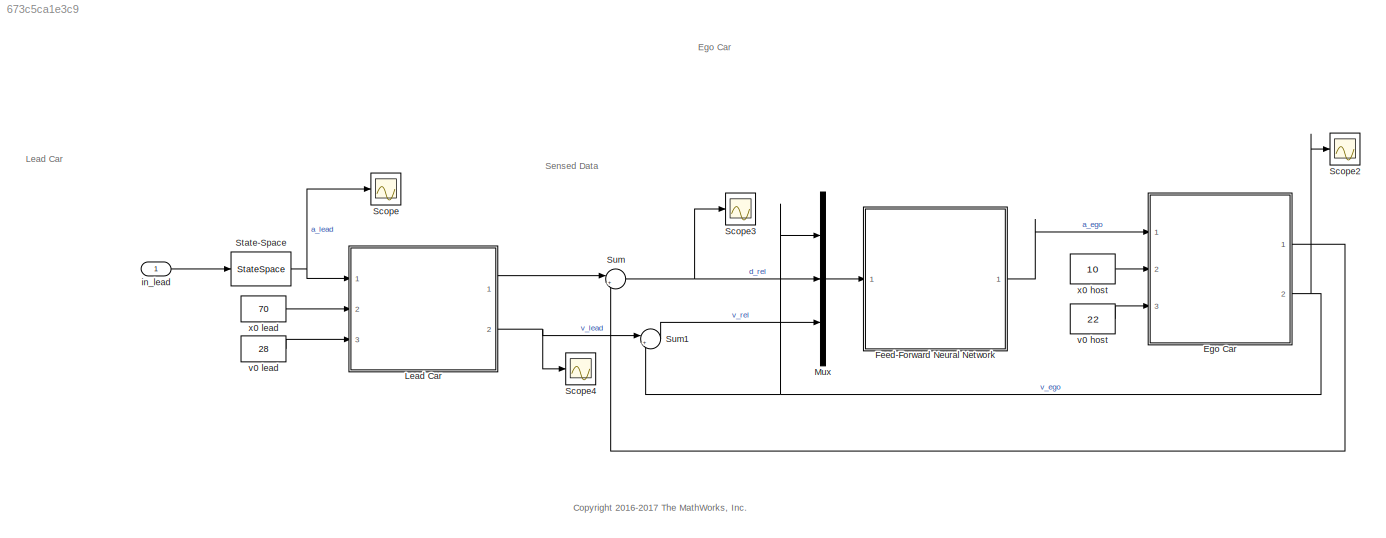
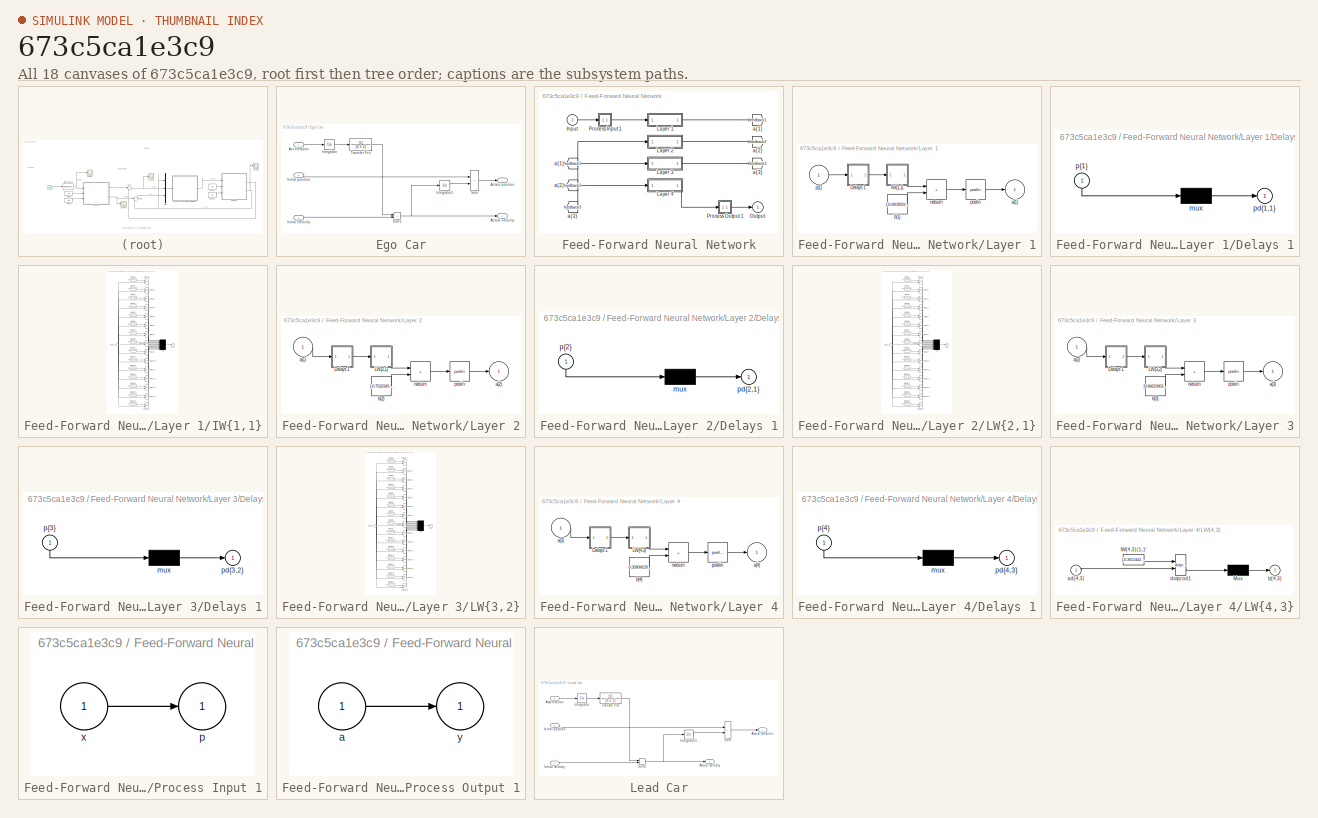
[diagram: thumbnail index - all 18 canvases of the model, root first then tree order]
MODEL slx_673c5ca1e3c9
KIND model
CONFIG AbsTol = auto
CONFIG EnableMultiTasking = off
CONFIG FixedStep = 0.1
CONFIG MaxStep = auto
CONFIG MinStep = auto
CONFIG RelTol = 1e-3
CONFIG SampleTimeConstraint = Unconstrained
CONFIG SolverName = FixedStepAuto
CONFIG StartTime = 0.0
CONFIG StopTime = 50
BLOCK [SubSystem] Ego Car
  Ports = [3, 2]
BLOCK [Inport] Ego Car/Acceleration
BLOCK [Outport] Ego Car/Actaul position
  VectorParamsAs1DForOutWhenUnconnected = off
BLOCK [Outport] Ego Car/Actual velocity
  Port = 2
  VectorParamsAs1DForOutWhenUnconnected = off
BLOCK [Inport] Ego Car/Initial position
  Port = 2
BLOCK [Inport] Ego Car/Initial velocity
  Port = 3
BLOCK [Integrator] Ego Car/Integrator
  Ports = [1, 1]
BLOCK [Integrator] Ego Car/Integrator1
  Ports = [1, 1]
BLOCK [Sum] Ego Car/Sum
  IconShape = rectangular
  Ports = [2, 1]
BLOCK [Sum] Ego Car/Sum1
  IconShape = rectangular
  Ports = [2, 1]
BLOCK [TransferFcn] Ego Car/Transfer Fcn
  Denominator = [0.5 1]
BLOCK [SubSystem] Feed-Forward Neural Network
  Ports = [1, 1]
BLOCK [From] Feed-Forward Neural Network/ a{1} 
  GotoTag = feedback1
BLOCK [From] Feed-Forward Neural Network/ a{2} 
  GotoTag = feedback2
BLOCK [From] Feed-Forward Neural Network/ a{3} 
  GotoTag = feedback3
BLOCK [Inport] Feed-Forward Neural Network/Input
  PortDimensions = 3
BLOCK [SubSystem] Feed-Forward Neural Network/Layer 1
  Ports = [1, 1]
BLOCK [SubSystem] Feed-Forward Neural Network/Layer 1/Delays 1
  Ports = [1, 1]
BLOCK [Mux] Feed-Forward Neural Network/Layer 1/Delays 1/mux
  Inputs = 1
  Ports = [1, 1]
BLOCK [Outport] Feed-Forward Neural Network/Layer 1/Delays 1/pd{1,1}
BLOCK [Inport] Feed-Forward Neural Network/Layer 1/Delays 1/p{1}
  NameLocation = left
  PortDimensions = 3
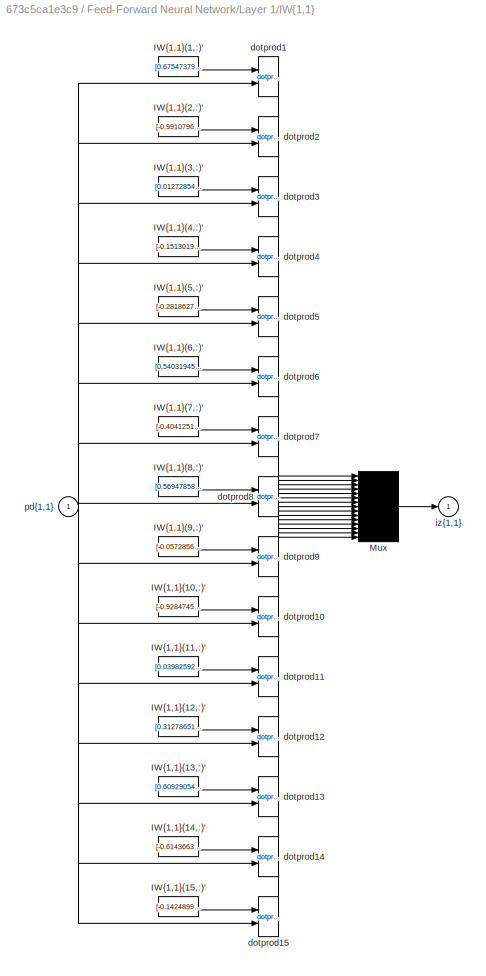
BLOCK [SubSystem] Feed-Forward Neural Network/Layer 1/IW{1,1}
  Ports = [1, 1]
BLOCK [Constant] Feed-Forward Neural Network/Layer 1/IW{1,1}/IW{1,1}(1,:)'
  Value = [0.67547379013478237030909667737432755529880523681640625;0.371577592685337076972018621745519340038299560546875;-0.1556428774207347931479716862668283283710479736328125]
BLOCK [Constant] Feed-Forward Neural Network/Layer 1/IW{1,1}/IW{1,1}(10,:)'
  Value = [-0.92847453346176411770329650607891380786895751953125;-0.81777307262693010869725185330025851726531982421875;-0.0997246060682079882298012307728640735149383544921875]
BLOCK [Constant] Feed-Forward Neural Network/Layer 1/IW{1,1}/IW{1,1}(11,:)'
  Value = [0.039825925003544059010973654721965431235730648040771484375;0.07014686602730953179918316209295880980789661407470703125;0.12814448364664043911176349865854717791080474853515625]
BLOCK [Constant] Feed-Forward Neural Network/Layer 1/IW{1,1}/IW{1,1}(12,:)'
  Value = [0.3127865195637851147836272502900101244449615478515625;0.08534379010894473094328560591748100705444812774658203125;0.33906120177929144343664802363491617143154144287109375]
BLOCK [Constant] Feed-Forward Neural Network/Layer 1/IW{1,1}/IW{1,1}(13,:)'
  Value = [0.60929054406608307292714243885711766779422760009765625;-0.0271753552399397642347356196523833204992115497589111328125;0.1863476156620053891810329105283017270267009735107421875]
BLOCK [Constant] Feed-Forward Neural Network/Layer 1/IW{1,1}/IW{1,1}(14,:)'
  Value = [-0.61436637442876762538190860141185112297534942626953125;-0.0247878761180676428221847373833952588029205799102783203125;-0.432256009764878046386371579501428641378879547119140625]
BLOCK [Constant] Feed-Forward Neural Network/Layer 1/IW{1,1}/IW{1,1}(15,:)'
  Value = [-0.1424899713618413554794273068182519637048244476318359375;0.5382226966710541571359271983965300023555755615234375;0.004628387800820573348692388293557087308727204799652099609375]
BLOCK [Constant] Feed-Forward Neural Network/Layer 1/IW{1,1}/IW{1,1}(2,:)'
  Value = [-0.99107967280202358129059803104610182344913482666015625;-0.62750705827523300950332441061618737876415252685546875;0.360834949337145383108094165436341427266597747802734375]
BLOCK [Constant] Feed-Forward Neural Network/Layer 1/IW{1,1}/IW{1,1}(3,:)'
  Value = [0.0127285474337911208575491173178306780755519866943359375;0.942724444710492104348986686090938746929168701171875;0.52401076425721992979589458627742715179920196533203125]
BLOCK [Constant] Feed-Forward Neural Network/Layer 1/IW{1,1}/IW{1,1}(4,:)'
  Value = [-0.1513019203692496095214892193325795233249664306640625;-0.514300803363661795941652599140070378780364990234375;0.890348226218802718534561790875159204006195068359375]
BLOCK [Constant] Feed-Forward Neural Network/Layer 1/IW{1,1}/IW{1,1}(5,:)'
  Value = [-0.2818627049118582750253381163929589092731475830078125;0.75043357810961286435968986552325077354907989501953125;-0.06880730591771865023442700248779146932065486907958984375]
BLOCK [Constant] Feed-Forward Neural Network/Layer 1/IW{1,1}/IW{1,1}(6,:)'
  Value = [0.540319457217218523936708152177743613719940185546875;-0.4618768266279633660786885229754261672496795654296875;0.4185634054210896071168690468766726553440093994140625]
BLOCK [Constant] Feed-Forward Neural Network/Layer 1/IW{1,1}/IW{1,1}(7,:)'
  Value = [-0.4041251918488300010068314804811961948871612548828125;0.5506936468712504417766240294440649449825286865234375;-0.2153889329420832776662564356229268014430999755859375]
BLOCK [Constant] Feed-Forward Neural Network/Layer 1/IW{1,1}/IW{1,1}(8,:)'
  Value = [0.5694785895214831139554689798387698829174041748046875;-0.6226760464170180142673416412435472011566162109375;-0.7612075044053889794071210417314432561397552490234375]
BLOCK [Constant] Feed-Forward Neural Network/Layer 1/IW{1,1}/IW{1,1}(9,:)'
  Value = [-0.057285692578776803429718711413443088531494140625;-0.425003653867737529736814394709654152393341064453125;0.21460788137126929342457515303976833820343017578125]
BLOCK [Mux] Feed-Forward Neural Network/Layer 1/IW{1,1}/Mux
  Inputs = 15
  Ports = [15, 1]
BLOCK [Reference] Feed-Forward Neural Network/Layer 1/IW{1,1}/dotprod1  REF=neural/Weight Functions/dotprod
  Ports = [2, 1]
  SourceBlock = neural/Weight Functions/dotprod
  SourceType = DOTPROD
BLOCK [Reference] Feed-Forward Neural Network/Layer 1/IW{1,1}/dotprod10  REF=neural/Weight Functions/dotprod
  Ports = [2, 1]
  SourceBlock = neural/Weight Functions/dotprod
  SourceType = DOTPROD
BLOCK [Reference] Feed-Forward Neural Network/Layer 1/IW{1,1}/dotprod11  REF=neural/Weight Functions/dotprod
  Ports = [2, 1]
  SourceBlock = neural/Weight Functions/dotprod
  SourceType = DOTPROD
BLOCK [Reference] Feed-Forward Neural Network/Layer 1/IW{1,1}/dotprod12  REF=neural/Weight Functions/dotprod
  Ports = [2, 1]
  SourceBlock = neural/Weight Functions/dotprod
  SourceType = DOTPROD
BLOCK [Reference] Feed-Forward Neural Network/Layer 1/IW{1,1}/dotprod13  REF=neural/Weight Functions/dotprod
  Ports = [2, 1]
  SourceBlock = neural/Weight Functions/dotprod
  SourceType = DOTPROD
BLOCK [Reference] Feed-Forward Neural Network/Layer 1/IW{1,1}/dotprod14  REF=neural/Weight Functions/dotprod
  Ports = [2, 1]
  SourceBlock = neural/Weight Functions/dotprod
  SourceType = DOTPROD
BLOCK [Reference] Feed-Forward Neural Network/Layer 1/IW{1,1}/dotprod15  REF=neural/Weight Functions/dotprod
  Ports = [2, 1]
  SourceBlock = neural/Weight Functions/dotprod
  SourceType = DOTPROD
BLOCK [Reference] Feed-Forward Neural Network/Layer 1/IW{1,1}/dotprod2  REF=neural/Weight Functions/dotprod
  Ports = [2, 1]
  SourceBlock = neural/Weight Functions/dotprod
  SourceType = DOTPROD
BLOCK [Reference] Feed-Forward Neural Network/Layer 1/IW{1,1}/dotprod3  REF=neural/Weight Functions/dotprod
  Ports = [2, 1]
  SourceBlock = neural/Weight Functions/dotprod
  SourceType = DOTPROD
BLOCK [Reference] Feed-Forward Neural Network/Layer 1/IW{1,1}/dotprod4  REF=neural/Weight Functions/dotprod
  Ports = [2, 1]
  SourceBlock = neural/Weight Functions/dotprod
  SourceType = DOTPROD
BLOCK [Reference] Feed-Forward Neural Network/Layer 1/IW{1,1}/dotprod5  REF=neural/Weight Functions/dotprod
  Ports = [2, 1]
  SourceBlock = neural/Weight Functions/dotprod
  SourceType = DOTPROD
BLOCK [Reference] Feed-Forward Neural Network/Layer 1/IW{1,1}/dotprod6  REF=neural/Weight Functions/dotprod
  Ports = [2, 1]
  SourceBlock = neural/Weight Functions/dotprod
  SourceType = DOTPROD
BLOCK [Reference] Feed-Forward Neural Network/Layer 1/IW{1,1}/dotprod7  REF=neural/Weight Functions/dotprod
  Ports = [2, 1]
  SourceBlock = neural/Weight Functions/dotprod
  SourceType = DOTPROD
BLOCK [Reference] Feed-Forward Neural Network/Layer 1/IW{1,1}/dotprod8  REF=neural/Weight Functions/dotprod
  Ports = [2, 1]
  SourceBlock = neural/Weight Functions/dotprod
  SourceType = DOTPROD
BLOCK [Reference] Feed-Forward Neural Network/Layer 1/IW{1,1}/dotprod9  REF=neural/Weight Functions/dotprod
  Ports = [2, 1]
  SourceBlock = neural/Weight Functions/dotprod
  SourceType = DOTPROD
BLOCK [Outport] Feed-Forward Neural Network/Layer 1/IW{1,1}/iz{1,1}
BLOCK [Inport] Feed-Forward Neural Network/Layer 1/IW{1,1}/pd{1,1}
  PortDimensions = 3
BLOCK [Outport] Feed-Forward Neural Network/Layer 1/a{1}
  InitialOutput = [0;0;0;0;0;0;0;0;0;0;0;0;0;0;0]
BLOCK [Constant] Feed-Forward Neural Network/Layer 1/b{1}
  Value = [-0.26030230903879836290570892742834985256195068359375;0.6818786540369199400402067112736403942108154296875;-1.23506718468202958405299796140752732753753662109375;-0.4871180155417054180588820599950850009918212890625;1.9187081509752903496490716861444525420665740966796875;0.1644983290544541620903373768669553101062774658203125;-0.384271958737895380497917585671530105173587799072265625;0.7398820647160146...<+427ch>
BLOCK [Sum] Feed-Forward Neural Network/Layer 1/netsum
  IconShape = rectangular
  InputSameDT = on
  Inputs = 2
  OutDataTypeStr = Inherit: Same as first input
  Ports = [2, 1]
  SaturateOnIntegerOverflow = on
BLOCK [Reference] Feed-Forward Neural Network/Layer 1/poslin  REF=neural/Transfer Functions/poslin
  Ports = [1, 1]
  SourceBlock = neural/Transfer Functions/poslin
  SourceType = POSLIN
BLOCK [Inport] Feed-Forward Neural Network/Layer 1/p{1}
  PortDimensions = 3
BLOCK [SubSystem] Feed-Forward Neural Network/Layer 2
  Ports = [1, 1]
BLOCK [SubSystem] Feed-Forward Neural Network/Layer 2/Delays 1
  Ports = [1, 1]
BLOCK [Mux] Feed-Forward Neural Network/Layer 2/Delays 1/mux
  Inputs = 1
  Ports = [1, 1]
BLOCK [Outport] Feed-Forward Neural Network/Layer 2/Delays 1/pd{2,1}
BLOCK [Inport] Feed-Forward Neural Network/Layer 2/Delays 1/p{2}
  NameLocation = left
  PortDimensions = 15
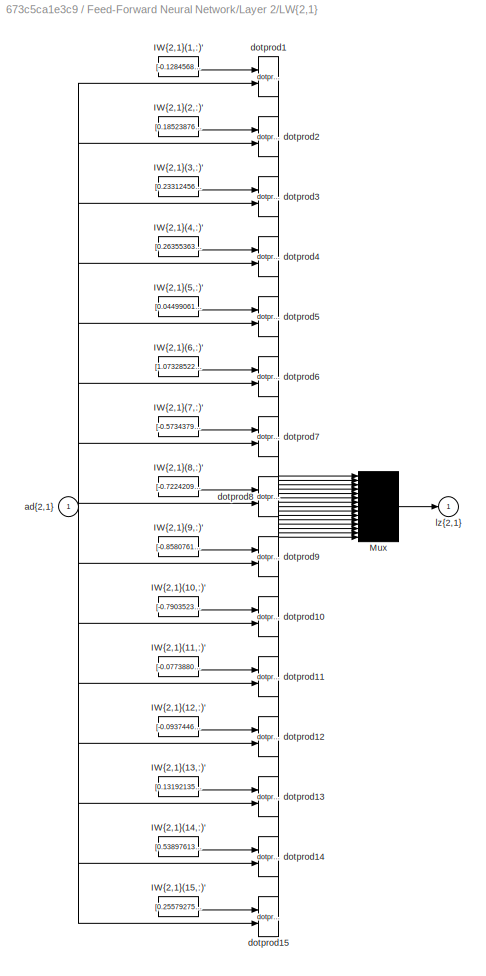
BLOCK [SubSystem] Feed-Forward Neural Network/Layer 2/LW{2,1}
  Ports = [1, 1]
BLOCK [Constant] Feed-Forward Neural Network/Layer 2/LW{2,1}/IW{2,1}(1,:)'
  Value = [-0.1284568902708948245905418161783018149435520172119140625;0.54389311937212003744690491657820530235767364501953125;0.53673915075766809312796112862997688353061676025390625;-0.96084475289336257475270031136460602283477783203125;-0.39150449404426834743020435780636034905910491943359375;-0.1860903257221864226522711760480888187885284423828125;0.7272658289096070038937114077270962297916412353515625;-0.544...<+441ch>
BLOCK [Constant] Feed-Forward Neural Network/Layer 2/LW{2,1}/IW{2,1}(10,:)'
  Value = [-0.79035233396170545550063479822711087763309478759765625;0.72237775299588691257923755983938463032245635986328125;-0.306611429735239748861630459941807202994823455810546875;0.5382287747765912566677570794126950204372406005859375;0.99699154938168776940443649436929263174533843994140625;0.3573046096003764660054002888500690460205078125;0.59913861015160729817097262639435939490795135498046875;-0.833034372...<+435ch>
BLOCK [Constant] Feed-Forward Neural Network/Layer 2/LW{2,1}/IW{2,1}(11,:)'
  Value = [-0.07738802749405981895591821739799343049526214599609375;-0.030300753448414353974360579968561069108545780181884765625;0.13159391893646643634241399922757409512996673583984375;-0.2064169659727668193482941205729730427265167236328125;0.042509571957955911980509000613892567344009876251220703125;-0.0096459618206787833827320355339907109737396240234375;0.374231149766926451949444754063733853399753570556640...<+450ch>
BLOCK [Constant] Feed-Forward Neural Network/Layer 2/LW{2,1}/IW{2,1}(12,:)'
  Value = [-0.09374465086869930574575704440576373599469661712646484375;-0.21310105235882270680036754129105247557163238525390625;-0.10868460812037449014777479305848828516900539398193359375;0.617028191774690260018587650847621262073516845703125;0.77303193361052124910060001639067195355892181396484375;-0.6205791879648396847102276296936906874179840087890625;0.92080509229272256011000763464835472404956817626953125;...<+438ch>
BLOCK [Constant] Feed-Forward Neural Network/Layer 2/LW{2,1}/IW{2,1}(13,:)'
  Value = [0.1319213560109291638600126361779985018074512481689453125;0.342914070048148500458040643934509716928005218505859375;0.17346245905404111820047319270088337361812591552734375;0.5101541980141670595827463330351747572422027587890625;0.2116092910741979860045347550112637691199779510498046875;-0.0099883500195583341252358877682127058506011962890625;0.07323493448403718686368080170723260380327701568603515625;...<+449ch>
BLOCK [Constant] Feed-Forward Neural Network/Layer 2/LW{2,1}/IW{2,1}(14,:)'
  Value = [0.5389761396637500201478587769088335335254669189453125;0.48251476910261115182976254800450988113880157470703125;0.57826646044851981454115730230114422738552093505859375;-0.2452089103297943051273932724143378436565399169921875;-1.179601056993847318921098121791146695613861083984375;-0.7047835560466226834108738330542109906673431396484375;-0.1688329075373741494647816807628259994089603424072265625;0.7815...<+428ch>
BLOCK [Constant] Feed-Forward Neural Network/Layer 2/LW{2,1}/IW{2,1}(15,:)'
  Value = [0.25579275922833755174679026822559535503387451171875;0.040104934780773593416824951418675482273101806640625;-0.11538917323325836861158677493222057819366455078125;-0.56796216807721133790209933067671954631805419921875;-0.6002743542850959013179590328945778310298919677734375;-0.890051706187623636878925026394426822662353515625;0.6026952110439045551260051070130430161952972412109375;0.9646064457672127723...<+417ch>
BLOCK [Constant] Feed-Forward Neural Network/Layer 2/LW{2,1}/IW{2,1}(2,:)'
  Value = [0.185238769116202905973267434092122130095958709716796875;0.86572745162572328769812202153843827545642852783203125;-0.5993331590168649025684999287477694451808929443359375;-0.3382842395718579364682909726980142295360565185546875;0.92854655533397656430594224730157293379306793212890625;0.4974114364313828584585053249611519277095794677734375;0.08349591760344533819537815588773810304701328277587890625;-0.0...<+441ch>
BLOCK [Constant] Feed-Forward Neural Network/Layer 2/LW{2,1}/IW{2,1}(3,:)'
  Value = [0.2331245610411065982692235820650239475071430206298828125;0.94534056286266598956302686929120682179927825927734375;0.73477219805281890341319694925914518535137176513671875;-0.1513810063337250877424366990453563630580902099609375;-1.2712555974780930245771060072002001106739044189453125;0.6511676315723111674316214703139849007129669189453125;0.8116798971944201301909060930483974516391754150390625;0.80170...<+439ch>
BLOCK [Constant] Feed-Forward Neural Network/Layer 2/LW{2,1}/IW{2,1}(4,:)'
  Value = [0.26355363763175121416537649565725587308406829833984375;-0.6159994507456831858149826075532473623752593994140625;-0.309763994465098335684416497315396554768085479736328125;-0.4594591531358693803355208729044534265995025634765625;0.366643413083722002898667824410949833691120147705078125;0.579926059889061651375641304184682667255401611328125;0.496490583582257893890954392190906219184398651123046875;0.149...<+437ch>
BLOCK [Constant] Feed-Forward Neural Network/Layer 2/LW{2,1}/IW{2,1}(5,:)'
  Value = [0.0449906115542042517319032413070090115070343017578125;-0.7222515943416893957618185595492832362651824951171875;-0.9110918154435230231769082820392213761806488037109375;-0.6058924038090884867102658972726203501224517822265625;-0.122710034826088776327424056944437325000762939453125;-0.3629515092020156874497160970349796116352081298828125;0.165581930351680117752266596653498709201812744140625;0.690356370...<+425ch>
BLOCK [Constant] Feed-Forward Neural Network/Layer 2/LW{2,1}/IW{2,1}(6,:)'
  Value = [1.073285228639864641309031867422163486480712890625;0.392495340995861308197589778501424007117748260498046875;0.4850650961144948869474546881974674761295318603515625;0.6434423699226197168599128417554311454296112060546875;0.680041364342549581323282836819998919963836669921875;0.0681282547414527872575717992731370031833648681640625;0.64862678540349472111614659297629259526729583740234375;0.47728058399080...<+433ch>
BLOCK [Constant] Feed-Forward Neural Network/Layer 2/LW{2,1}/IW{2,1}(7,:)'
  Value = [-0.57343791016769840584998974009067751467227935791015625;-0.81230175846522756355483352308510802686214447021484375;-0.460163965563413768222744693048298358917236328125;-0.140157181233467209580112466937862336635589599609375;0.595545978896323102702581309131346642971038818359375;-0.82009864245883790090374532155692577362060546875;0.7869613238475354766165992259630002081394195556640625;0.1719740716529516...<+426ch>
BLOCK [Constant] Feed-Forward Neural Network/Layer 2/LW{2,1}/IW{2,1}(8,:)'
  Value = [-0.7224209835068311491568238125182688236236572265625;0.050869593250156990016375146979044075123965740203857421875;0.21859062205123958033681219603749923408031463623046875;0.7755419085127075451424616403528489172458648681640625;-0.98730531091106688013070424858597107231616973876953125;-0.776588511613593102111963162315078079700469970703125;0.792481707072821617288127526990137994289398193359375;-0.506530...<+436ch>
BLOCK [Constant] Feed-Forward Neural Network/Layer 2/LW{2,1}/IW{2,1}(9,:)'
  Value = [-0.85807612104994845925176605305750854313373565673828125;0.060642466524505611591422393757966347038745880126953125;0.67053556318306017924868456248077563941478729248046875;-0.2176340090776733848798585313488729298114776611328125;0.498101819152965752390826992268557660281658172607421875;-0.727414902123402651312744637834839522838592529296875;-1.0967891667210161177337113258545286953449249267578125;0.332...<+432ch>
BLOCK [Mux] Feed-Forward Neural Network/Layer 2/LW{2,1}/Mux
  Inputs = 15
  Ports = [15, 1]
BLOCK [Inport] Feed-Forward Neural Network/Layer 2/LW{2,1}/ad{2,1}
  PortDimensions = 15
BLOCK [Reference] Feed-Forward Neural Network/Layer 2/LW{2,1}/dotprod1  REF=neural/Weight Functions/dotprod
  Ports = [2, 1]
  SourceBlock = neural/Weight Functions/dotprod
  SourceType = DOTPROD
BLOCK [Reference] Feed-Forward Neural Network/Layer 2/LW{2,1}/dotprod10  REF=neural/Weight Functions/dotprod
  Ports = [2, 1]
  SourceBlock = neural/Weight Functions/dotprod
  SourceType = DOTPROD
BLOCK [Reference] Feed-Forward Neural Network/Layer 2/LW{2,1}/dotprod11  REF=neural/Weight Functions/dotprod
  Ports = [2, 1]
  SourceBlock = neural/Weight Functions/dotprod
  SourceType = DOTPROD
BLOCK [Reference] Feed-Forward Neural Network/Layer 2/LW{2,1}/dotprod12  REF=neural/Weight Functions/dotprod
  Ports = [2, 1]
  SourceBlock = neural/Weight Functions/dotprod
  SourceType = DOTPROD
BLOCK [Reference] Feed-Forward Neural Network/Layer 2/LW{2,1}/dotprod13  REF=neural/Weight Functions/dotprod
  Ports = [2, 1]
  SourceBlock = neural/Weight Functions/dotprod
  SourceType = DOTPROD
BLOCK [Reference] Feed-Forward Neural Network/Layer 2/LW{2,1}/dotprod14  REF=neural/Weight Functions/dotprod
  Ports = [2, 1]
  SourceBlock = neural/Weight Functions/dotprod
  SourceType = DOTPROD
BLOCK [Reference] Feed-Forward Neural Network/Layer 2/LW{2,1}/dotprod15  REF=neural/Weight Functions/dotprod
  Ports = [2, 1]
  SourceBlock = neural/Weight Functions/dotprod
  SourceType = DOTPROD
BLOCK [Reference] Feed-Forward Neural Network/Layer 2/LW{2,1}/dotprod2  REF=neural/Weight Functions/dotprod
  Ports = [2, 1]
  SourceBlock = neural/Weight Functions/dotprod
  SourceType = DOTPROD
BLOCK [Reference] Feed-Forward Neural Network/Layer 2/LW{2,1}/dotprod3  REF=neural/Weight Functions/dotprod
  Ports = [2, 1]
  SourceBlock = neural/Weight Functions/dotprod
  SourceType = DOTPROD
BLOCK [Reference] Feed-Forward Neural Network/Layer 2/LW{2,1}/dotprod4  REF=neural/Weight Functions/dotprod
  Ports = [2, 1]
  SourceBlock = neural/Weight Functions/dotprod
  SourceType = DOTPROD
BLOCK [Reference] Feed-Forward Neural Network/Layer 2/LW{2,1}/dotprod5  REF=neural/Weight Functions/dotprod
  Ports = [2, 1]
  SourceBlock = neural/Weight Functions/dotprod
  SourceType = DOTPROD
BLOCK [Reference] Feed-Forward Neural Network/Layer 2/LW{2,1}/dotprod6  REF=neural/Weight Functions/dotprod
  Ports = [2, 1]
  SourceBlock = neural/Weight Functions/dotprod
  SourceType = DOTPROD
BLOCK [Reference] Feed-Forward Neural Network/Layer 2/LW{2,1}/dotprod7  REF=neural/Weight Functions/dotprod
  Ports = [2, 1]
  SourceBlock = neural/Weight Functions/dotprod
  SourceType = DOTPROD
BLOCK [Reference] Feed-Forward Neural Network/Layer 2/LW{2,1}/dotprod8  REF=neural/Weight Functions/dotprod
  Ports = [2, 1]
  SourceBlock = neural/Weight Functions/dotprod
  SourceType = DOTPROD
BLOCK [Reference] Feed-Forward Neural Network/Layer 2/LW{2,1}/dotprod9  REF=neural/Weight Functions/dotprod
  Ports = [2, 1]
  SourceBlock = neural/Weight Functions/dotprod
  SourceType = DOTPROD
BLOCK [Outport] Feed-Forward Neural Network/Layer 2/LW{2,1}/lz{2,1}
BLOCK [Inport] Feed-Forward Neural Network/Layer 2/a{1} 
  PortDimensions = 15
BLOCK [Outport] Feed-Forward Neural Network/Layer 2/a{2}
  InitialOutput = [0;0;0;0;0;0;0;0;0;0;0;0;0;0;0]
BLOCK [Constant] Feed-Forward Neural Network/Layer 2/b{2}
  Value = [-0.75323431378335936603463096616906113922595977783203125;0.64384536796218194698582237833761610090732574462890625;-0.91422947132138887571528584885527379810810089111328125;-0.61840379091899178032321060527465306222438812255859375;-0.574796933282314181923311480204574763774871826171875;0.326486185335472078872243173464084975421428680419921875;-0.841298299168700136618781471042893826961517333984375;-0.81...<+434ch>
BLOCK [Sum] Feed-Forward Neural Network/Layer 2/netsum
  IconShape = rectangular
  InputSameDT = on
  Inputs = 2
  OutDataTypeStr = Inherit: Same as first input
  Ports = [2, 1]
  SaturateOnIntegerOverflow = on
BLOCK [Reference] Feed-Forward Neural Network/Layer 2/poslin  REF=neural/Transfer Functions/poslin
  Ports = [1, 1]
  SourceBlock = neural/Transfer Functions/poslin
  SourceType = POSLIN
BLOCK [SubSystem] Feed-Forward Neural Network/Layer 3
  Ports = [1, 1]
BLOCK [SubSystem] Feed-Forward Neural Network/Layer 3/Delays 1
  Ports = [1, 1]
BLOCK [Mux] Feed-Forward Neural Network/Layer 3/Delays 1/mux
  Inputs = 1
  Ports = [1, 1]
BLOCK [Outport] Feed-Forward Neural Network/Layer 3/Delays 1/pd{3,2}
BLOCK [Inport] Feed-Forward Neural Network/Layer 3/Delays 1/p{3}
  NameLocation = left
  PortDimensions = 15
BLOCK [SubSystem] Feed-Forward Neural Network/Layer 3/LW{3,2}
  Ports = [1, 1]
BLOCK [Constant] Feed-Forward Neural Network/Layer 3/LW{3,2}/IW{3,2}(1,:)'
  Value = [-0.0878846663125170124430951545946300029754638671875;0.0675439035340004156893201070488430559635162353515625;0.3850639727730376105085952076478861272335052490234375;-0.897336227775257899708094555535353720188140869140625;0.4800646559755552544856982422061264514923095703125;-0.5886509570704803184781894742627628147602081298828125;-0.7754320756879466980393544872640632092952728271484375;-0.02479244913215...<+418ch>
BLOCK [Constant] Feed-Forward Neural Network/Layer 3/LW{3,2}/IW{3,2}(10,:)'
  Value = [0.68743377717876719135148277928237803280353546142578125;0.0164115705993483247671083091745458659715950489044189453125;-0.7366864626889284561883641799795441329479217529296875;-0.2545087325302743952448736308724619448184967041015625;0.1958832707677782281052714097313582897186279296875;-0.389178760778625398852881289712968282401561737060546875;0.298243617485746737028051711604348383843898773193359375;0.0...<+445ch>
BLOCK [Constant] Feed-Forward Neural Network/Layer 3/LW{3,2}/IW{3,2}(11,:)'
  Value = [0.262139998427187048690711890230886638164520263671875;0.0522049315911223832387122456566430628299713134765625;0.0990802140303959077982653980143368244171142578125;0.2814358459318511140878626974881626665592193603515625;0.5787278872838108600973328066174872219562530517578125;-0.5252539605888415508161415345966815948486328125;-0.780489898553896832567033925442956387996673583984375;-0.36837712332226790756...<+420ch>
BLOCK [Constant] Feed-Forward Neural Network/Layer 3/LW{3,2}/IW{3,2}(12,:)'
  Value = [-0.76693720348648930507096110886777751147747039794921875;0.5481856490673935322632814859389327466487884521484375;-0.0173256676970391411407579340675511048175394535064697265625;-0.2227443390360405450767444790471927262842655181884765625;-0.26469416312424609571962719201110303401947021484375;0.1327473606630025226849056707578711211681365966796875;0.880155040053234305474916254752315580844879150390625;0.9...<+447ch>
BLOCK [Constant] Feed-Forward Neural Network/Layer 3/LW{3,2}/IW{3,2}(13,:)'
  Value = [-0.8382751537393726692926065879873931407928466796875;0.414506970630843074587801311281509697437286376953125;0.7809513583688765248069785229745320975780487060546875;0.3076240451915472906563309152261354029178619384765625;-0.5879442809896107124956188272335566580295562744140625;-0.81700253732117555927061403053812682628631591796875;-0.62507838715662700224129366688430309295654296875;0.3928659780121896982...<+422ch>
BLOCK [Constant] Feed-Forward Neural Network/Layer 3/LW{3,2}/IW{3,2}(14,:)'
  Value = [0.1778308153014782899692391993085038848221302032470703125;0.52463729139749737395703732545371167361736297607421875;2.230250057260251939084128025569953024387359619140625;0.5030503612490930809286737712682224810123443603515625;-0.8266669052089354874368609671364538371562957763671875;0.06677773512409916623067118734979885630309581756591796875;-0.412912205520802710889682884953799657523632049560546875;0.1...<+445ch>
BLOCK [Constant] Feed-Forward Neural Network/Layer 3/LW{3,2}/IW{3,2}(15,:)'
  Value = [0.813211486545263095848667944665066897869110107421875;-0.419622632984383681087336981363478116691112518310546875;0.46867819330040705327888872488983906805515289306640625;0.1694393821494001028948872544788173399865627288818359375;0.543867834198214605834209578461013734340667724609375;-0.790158192045417262505679900641553103923797607421875;0.5953226747136171059793241511215455830097198486328125;-0.738617...<+434ch>
BLOCK [Constant] Feed-Forward Neural Network/Layer 3/LW{3,2}/IW{3,2}(2,:)'
  Value = [-0.7966612127504897333807321047061122953891754150390625;-0.7816915759150828701962154809734784066677093505859375;0.1133396699280251329611246546846814453601837158203125;-0.854229401802047760838831891305744647979736328125;-0.530346170504191416483763532596640288829803466796875;-0.2234567379043965740237354111741296947002410888671875;0.5688557814878254514923128226655535399913787841796875;0.537916528117...<+429ch>
BLOCK [Constant] Feed-Forward Neural Network/Layer 3/LW{3,2}/IW{3,2}(3,:)'
  Value = [0.9907794553101834100772293822956271469593048095703125;0.6516177157111966433689076438895426690578460693359375;-0.20695841483681487460444259340874850749969482421875;-0.8229450806505591575756852762424387037754058837890625;0.4699150833921044156937796287820674479007720947265625;0.103557063914454960951161410775966942310333251953125;-0.416859364186138225960576164652593433856964111328125;-0.207986509564...<+427ch>
BLOCK [Constant] Feed-Forward Neural Network/Layer 3/LW{3,2}/IW{3,2}(4,:)'
  Value = [-0.1653455096225807940957253094893530942499637603759765625;-1.081214726457761177158545251586474478244781494140625;-0.87422027289532888705281266084057278931140899658203125;0.450305492871755752570805952927912585437297821044921875;0.94119705017322896622999905957840383052825927734375;-0.230965046571925347596021538265631534159183502197265625;0.26598312393281398069433407727046869695186614990234375;-1.4...<+444ch>
BLOCK [Constant] Feed-Forward Neural Network/Layer 3/LW{3,2}/IW{3,2}(5,:)'
  Value = [-0.2045241583878916469263486987983924336731433868408203125;-0.125354316211277849735239442452439107000827789306640625;0.325213185635493673419915694466908462345600128173828125;0.96376666077028783075064666263642720878124237060546875;0.7338605835038318758734021685086190700531005859375;0.3512237265341091596582145939464680850505828857421875;0.92732155751110323382846445383620448410511016845703125;-0.954...<+438ch>
BLOCK [Constant] Feed-Forward Neural Network/Layer 3/LW{3,2}/IW{3,2}(6,:)'
  Value = [-0.98670628691162221013399857838521711528301239013671875;0.1438209374104713333952787479574908502399921417236328125;0.11857811367303762450919890625300467945635318756103515625;0.483871831262136009588203933162731118500232696533203125;-0.8275309402730073315979097969830036163330078125;-0.032919301762808682310090802047852776013314723968505859375;-0.1498879768750767116358701969147659838199615478515625;0...<+452ch>
BLOCK [Constant] Feed-Forward Neural Network/Layer 3/LW{3,2}/IW{3,2}(7,:)'
  Value = [-0.40351205622447228194005219847895205020904541015625;-0.979326763313207226957501916331239044666290283203125;0.215731814525891518741218533250503242015838623046875;-0.735834088572874467359952177503146231174468994140625;-0.2671267673616022353400012434576638042926788330078125;-0.6963089497674668226778749158256687223911285400390625;0.3895043892358802661846084447461180388927459716796875;-0.14087108149...<+424ch>
BLOCK [Constant] Feed-Forward Neural Network/Layer 3/LW{3,2}/IW{3,2}(8,:)'
  Value = [-0.94373226930546394441989832557737827301025390625;-0.5833312606664506905218559040804393589496612548828125;0.0185919042278486212893540141521953046321868896484375;0.51203406407745843953449593755067326128482818603515625;-0.2616023913399636580123797102714888751506805419921875;0.249061080679932322912151221316889859735965728759765625;0.5171689688250296068616762568126432597637176513671875;-0.6917261229...<+419ch>
BLOCK [Constant] Feed-Forward Neural Network/Layer 3/LW{3,2}/IW{3,2}(9,:)'
  Value = [0.010856284915405911561947505106218159198760986328125;0.3358322431472473557079183592577464878559112548828125;-0.7903735160530007686219278184580616652965545654296875;-0.7792930387153027549373973670299164950847625732421875;0.3700569453232185335167514494969509541988372802734375;-0.7987873552751569850016721829888410866260528564453125;-0.1347153477057989601206600127625279128551483154296875;0.219714338...<+432ch>
BLOCK [Mux] Feed-Forward Neural Network/Layer 3/LW{3,2}/Mux
  Inputs = 15
  Ports = [15, 1]
BLOCK [Inport] Feed-Forward Neural Network/Layer 3/LW{3,2}/ad{3,2}
  PortDimensions = 15
BLOCK [Reference] Feed-Forward Neural Network/Layer 3/LW{3,2}/dotprod1  REF=neural/Weight Functions/dotprod
  Ports = [2, 1]
  SourceBlock = neural/Weight Functions/dotprod
  SourceType = DOTPROD
BLOCK [Reference] Feed-Forward Neural Network/Layer 3/LW{3,2}/dotprod10  REF=neural/Weight Functions/dotprod
  Ports = [2, 1]
  SourceBlock = neural/Weight Functions/dotprod
  SourceType = DOTPROD
BLOCK [Reference] Feed-Forward Neural Network/Layer 3/LW{3,2}/dotprod11  REF=neural/Weight Functions/dotprod
  Ports = [2, 1]
  SourceBlock = neural/Weight Functions/dotprod
  SourceType = DOTPROD
BLOCK [Reference] Feed-Forward Neural Network/Layer 3/LW{3,2}/dotprod12  REF=neural/Weight Functions/dotprod
  Ports = [2, 1]
  SourceBlock = neural/Weight Functions/dotprod
  SourceType = DOTPROD
BLOCK [Reference] Feed-Forward Neural Network/Layer 3/LW{3,2}/dotprod13  REF=neural/Weight Functions/dotprod
  Ports = [2, 1]
  SourceBlock = neural/Weight Functions/dotprod
  SourceType = DOTPROD
BLOCK [Reference] Feed-Forward Neural Network/Layer 3/LW{3,2}/dotprod14  REF=neural/Weight Functions/dotprod
  Ports = [2, 1]
  SourceBlock = neural/Weight Functions/dotprod
  SourceType = DOTPROD
BLOCK [Reference] Feed-Forward Neural Network/Layer 3/LW{3,2}/dotprod15  REF=neural/Weight Functions/dotprod
  Ports = [2, 1]
  SourceBlock = neural/Weight Functions/dotprod
  SourceType = DOTPROD
BLOCK [Reference] Feed-Forward Neural Network/Layer 3/LW{3,2}/dotprod2  REF=neural/Weight Functions/dotprod
  Ports = [2, 1]
  SourceBlock = neural/Weight Functions/dotprod
  SourceType = DOTPROD
BLOCK [Reference] Feed-Forward Neural Network/Layer 3/LW{3,2}/dotprod3  REF=neural/Weight Functions/dotprod
  Ports = [2, 1]
  SourceBlock = neural/Weight Functions/dotprod
  SourceType = DOTPROD
BLOCK [Reference] Feed-Forward Neural Network/Layer 3/LW{3,2}/dotprod4  REF=neural/Weight Functions/dotprod
  Ports = [2, 1]
  SourceBlock = neural/Weight Functions/dotprod
  SourceType = DOTPROD
BLOCK [Reference] Feed-Forward Neural Network/Layer 3/LW{3,2}/dotprod5  REF=neural/Weight Functions/dotprod
  Ports = [2, 1]
  SourceBlock = neural/Weight Functions/dotprod
  SourceType = DOTPROD
BLOCK [Reference] Feed-Forward Neural Network/Layer 3/LW{3,2}/dotprod6  REF=neural/Weight Functions/dotprod
  Ports = [2, 1]
  SourceBlock = neural/Weight Functions/dotprod
  SourceType = DOTPROD
BLOCK [Reference] Feed-Forward Neural Network/Layer 3/LW{3,2}/dotprod7  REF=neural/Weight Functions/dotprod
  Ports = [2, 1]
  SourceBlock = neural/Weight Functions/dotprod
  SourceType = DOTPROD
BLOCK [Reference] Feed-Forward Neural Network/Layer 3/LW{3,2}/dotprod8  REF=neural/Weight Functions/dotprod
  Ports = [2, 1]
  SourceBlock = neural/Weight Functions/dotprod
  SourceType = DOTPROD
BLOCK [Reference] Feed-Forward Neural Network/Layer 3/LW{3,2}/dotprod9  REF=neural/Weight Functions/dotprod
  Ports = [2, 1]
  SourceBlock = neural/Weight Functions/dotprod
  SourceType = DOTPROD
BLOCK [Outport] Feed-Forward Neural Network/Layer 3/LW{3,2}/lz{3,2}
BLOCK [Inport] Feed-Forward Neural Network/Layer 3/a{2} 
  PortDimensions = 15
BLOCK [Outport] Feed-Forward Neural Network/Layer 3/a{3}
  InitialOutput = [0;0;0;0;0;0;0;0;0;0;0;0;0;0;0]
BLOCK [Constant] Feed-Forward Neural Network/Layer 3/b{3}
  Value = [0.842194511784394972409018009784631431102752685546875;0.589315770777506298117032201844267547130584716796875;0.15478839341329742040898054256103932857513427734375;0.1687559726131655224445893281881581060588359832763671875;-0.46249232711000309858917489691521041095256805419921875;0.306632061215747320215285753874923102557659149169921875;-0.5426610357889971592015854184865020215511322021484375;-1.4507514...<+434ch>
BLOCK [Sum] Feed-Forward Neural Network/Layer 3/netsum
  IconShape = rectangular
  InputSameDT = on
  Inputs = 2
  OutDataTypeStr = Inherit: Same as first input
  Ports = [2, 1]
  SaturateOnIntegerOverflow = on
BLOCK [Reference] Feed-Forward Neural Network/Layer 3/poslin  REF=neural/Transfer Functions/poslin
  Ports = [1, 1]
  SourceBlock = neural/Transfer Functions/poslin
  SourceType = POSLIN
BLOCK [SubSystem] Feed-Forward Neural Network/Layer 4
  Ports = [1, 1]
BLOCK [SubSystem] Feed-Forward Neural Network/Layer 4/Delays 1
  Ports = [1, 1]
BLOCK [Mux] Feed-Forward Neural Network/Layer 4/Delays 1/mux
  Inputs = 1
  Ports = [1, 1]
BLOCK [Outport] Feed-Forward Neural Network/Layer 4/Delays 1/pd{4,3}
BLOCK [Inport] Feed-Forward Neural Network/Layer 4/Delays 1/p{4}
  NameLocation = left
  PortDimensions = 15
BLOCK [SubSystem] Feed-Forward Neural Network/Layer 4/LW{4,3}
  Ports = [1, 1]
BLOCK [Constant] Feed-Forward Neural Network/Layer 4/LW{4,3}/IW{4,3}(1,:)'
  Value = [-0.365144272688300741691591611015610396862030029296875;0.6290795458013025420740405024844221770763397216796875;0.5781470298779165517544242902658879756927490234375;1.5199255259402597584283967080409638583660125732421875;-0.342205347540937399042348943112301640212535858154296875;0.82569404513210198359729474759660661220550537109375;0.9017888307562704763853389522409997880458831787109375;-0.9050456142777...<+415ch>
BLOCK [Mux] Feed-Forward Neural Network/Layer 4/LW{4,3}/Mux
  Inputs = 1
  Ports = [1, 1]
BLOCK [Inport] Feed-Forward Neural Network/Layer 4/LW{4,3}/ad{4,3}
  PortDimensions = 15
BLOCK [Reference] Feed-Forward Neural Network/Layer 4/LW{4,3}/dotprod1  REF=neural/Weight Functions/dotprod
  Ports = [2, 1]
  SourceBlock = neural/Weight Functions/dotprod
  SourceType = DOTPROD
BLOCK [Outport] Feed-Forward Neural Network/Layer 4/LW{4,3}/lz{4,3}
BLOCK [Inport] Feed-Forward Neural Network/Layer 4/a{3} 
  PortDimensions = 15
BLOCK [Outport] Feed-Forward Neural Network/Layer 4/a{4}
  InitialOutput = 0
BLOCK [Constant] Feed-Forward Neural Network/Layer 4/b{4}
  Value = -0.328041599165723452014020722344866953790187835693359375
BLOCK [Sum] Feed-Forward Neural Network/Layer 4/netsum
  IconShape = rectangular
  InputSameDT = on
  Inputs = 2
  OutDataTypeStr = Inherit: Same as first input
  Ports = [2, 1]
  SaturateOnIntegerOverflow = on
BLOCK [Reference] Feed-Forward Neural Network/Layer 4/purelin  REF=neural/Transfer Functions/purelin
  Ports = [1, 1]
  SourceBlock = neural/Transfer Functions/purelin
  SourceType = PURELIN
BLOCK [Outport] Feed-Forward Neural Network/Output
  InitialOutput = 0
BLOCK [SubSystem] Feed-Forward Neural Network/Process Input 1
  Ports = [1, 1]
BLOCK [Outport] Feed-Forward Neural Network/Process Input 1/p
  PortDimensions = 3
BLOCK [Inport] Feed-Forward Neural Network/Process Input 1/x
  PortDimensions = 3
BLOCK [SubSystem] Feed-Forward Neural Network/Process Output 1
  Ports = [1, 1]
BLOCK [Inport] Feed-Forward Neural Network/Process Output 1/a
  PortDimensions = 1
BLOCK [Outport] Feed-Forward Neural Network/Process Output 1/y
  PortDimensions = 1
BLOCK [Goto] Feed-Forward Neural Network/a{1}
  GotoTag = feedback1
BLOCK [Goto] Feed-Forward Neural Network/a{2}
  GotoTag = feedback2
BLOCK [Goto] Feed-Forward Neural Network/a{3}
  GotoTag = feedback3
BLOCK [SubSystem] Lead Car
  Ports = [3, 2]
BLOCK [Inport] Lead Car/Acceleration
BLOCK [Outport] Lead Car/Actual position
  VectorParamsAs1DForOutWhenUnconnected = off
BLOCK [Outport] Lead Car/Actual velocity
  Port = 2
  VectorParamsAs1DForOutWhenUnconnected = off
BLOCK [Inport] Lead Car/Initial position
  Port = 2
BLOCK [Inport] Lead Car/Initial velocity
  Port = 3
BLOCK [Integrator] Lead Car/Integrator
  Ports = [1, 1]
BLOCK [Integrator] Lead Car/Integrator1
  Ports = [1, 1]
BLOCK [Sum] Lead Car/Sum
  IconShape = rectangular
  Ports = [2, 1]
BLOCK [Sum] Lead Car/Sum1
  IconShape = rectangular
  Ports = [2, 1]
BLOCK [TransferFcn] Lead Car/Transfer Fcn
  Denominator = [0.5 1]
BLOCK [Mux] Mux
  DisplayOption = bar
  Inputs = 3
  Ports = [3, 1]
BLOCK [Scope] Scope
  Floating = off
  NumInputPorts = 1
  Ports = [1]
  ScopeSpecificationString = Simulink.scopes.TimeScopeBlockCfg('CurrentConfiguration', extmgr.ConfigurationSet(extmgr.Configuration('Core','General UI',true),extmgr.Configuration('Core','Source UI',true),extmgr.Configuration('Sources','WiredSimulink',true),extmgr.Configuration('Visuals','Time Domain',true,'SerializedDisplays',{struct('MinYLimReal','-1.21635','MaxYLimReal','1.10113','YLabelReal','','MinYLimMag','0.00000','MaxY...<+1374ch>
BLOCK [Scope] Scope2
  Floating = off
  NumInputPorts = 1
  Ports = [1]
  ScopeSpecificationString = Simulink.scopes.TimeScopeBlockCfg('CurrentConfiguration', extmgr.ConfigurationSet(extmgr.Configuration('Core','General UI',true),extmgr.Configuration('Core','Source UI',true),extmgr.Configuration('Sources','WiredSimulink',true,'DataLoggingVariableName','ScopeData1'),extmgr.Configuration('Visuals','Time Domain',true,'SerializedDisplays',{struct('MinYLimReal','10.35598','MaxYLimReal','31.99062','YLa...<+1418ch>
BLOCK [Scope] Scope3
  Floating = off
  NumInputPorts = 1
  Ports = [1]
  ScopeSpecificationString = Simulink.scopes.TimeScopeBlockCfg('CurrentConfiguration', extmgr.ConfigurationSet(extmgr.Configuration('Core','General UI',true),extmgr.Configuration('Core','Source UI',true),extmgr.Configuration('Sources','WiredSimulink',true,'DataLoggingVariableName','ScopeData2'),extmgr.Configuration('Visuals','Time Domain',true,'SerializedDisplays',{struct('MinYLimReal','-841.23886','MaxYLimReal','7971.14972',...<+1431ch>
BLOCK [Scope] Scope4
  Floating = off
  NumInputPorts = 1
  Ports = [1]
  ScopeSpecificationString = Simulink.scopes.TimeScopeBlockCfg('CurrentConfiguration', extmgr.ConfigurationSet(extmgr.Configuration('Core','General UI',true),extmgr.Configuration('Core','Source UI',true),extmgr.Configuration('Sources','WiredSimulink',true,'DataLoggingVariableName','ScopeData3'),extmgr.Configuration('Visuals','Time Domain',true,'SerializedDisplays',{struct('MinYLimReal','22.48594','MaxYLimReal','47.62657','YLa...<+1420ch>
BLOCK [StateSpace] State-Space
  A = -10
  B = 10
  D = 0
  InitialCondition = 0
  NameLocation = top
  Ports = [1, 1]
BLOCK [Sum] Sum
  Inputs = |+-
  Ports = [2, 1]
BLOCK [Sum] Sum1
  Inputs = |+-
  Ports = [2, 1]
BLOCK [Inport] in_lead
BLOCK [Constant] v0 host
  SampleTime = 0.1
  Value = 22
BLOCK [Constant] v0 lead
  SampleTime = 0.1
  Value = 28
BLOCK [Constant] x0 host
  SampleTime = 0.1
  Value = 10
BLOCK [Constant] x0 lead
  SampleTime = 0.1
  Value = 70
ANNOTATION (root): <copyright redacted>
ANNOTATION (root): Ego Car
ANNOTATION (root): Lead Car
ANNOTATION (root): Sensed Data
LINE Ego Car/Acceleration:1 -> Ego Car/Integrator:1
LINE Ego Car/Initial position:1 -> Ego Car/Sum:1
LINE Ego Car/Initial velocity:1 -> Ego Car/Sum1:2
LINE Ego Car/Integrator1:1 -> Ego Car/Sum:2
LINE Ego Car/Integrator:1 -> Ego Car/Transfer Fcn:1
NET Ego Car/Sum1:1 -> Ego Car/Actual velocity:1, Ego Car/Integrator1:1
LINE Ego Car/Sum:1 -> Ego Car/Actaul position:1
LINE Ego Car/Transfer Fcn:1 -> Ego Car/Sum1:1
LINE Ego Car:1 -> Sum:2
NET Ego Car:2 -> Mux:1, Scope2:1, Sum1:2
LINE Feed-Forward Neural Network/ a{1} :1 -> Feed-Forward Neural Network/Layer 2:1
LINE Feed-Forward Neural Network/ a{2} :1 -> Feed-Forward Neural Network/Layer 3:1
LINE Feed-Forward Neural Network/ a{3} :1 -> Feed-Forward Neural Network/Layer 4:1
LINE Feed-Forward Neural Network/Input:1 -> Feed-Forward Neural Network/Process Input 1:1
LINE Feed-Forward Neural Network/Layer 1/Delays 1/mux:1 -> Feed-Forward Neural Network/Layer 1/Delays 1/pd{1,1}:1
LINE Feed-Forward Neural Network/Layer 1/Delays 1/p{1}:1 -> Feed-Forward Neural Network/Layer 1/Delays 1/mux:1
LINE Feed-Forward Neural Network/Layer 1/Delays 1:1 -> Feed-Forward Neural Network/Layer 1/IW{1,1}:1
LINE Feed-Forward Neural Network/Layer 1/IW{1,1}/IW{1,1}(1,:)':1 -> Feed-Forward Neural Network/Layer 1/IW{1,1}/dotprod1:1
LINE Feed-Forward Neural Network/Layer 1/IW{1,1}/IW{1,1}(10,:)':1 -> Feed-Forward Neural Network/Layer 1/IW{1,1}/dotprod10:1
LINE Feed-Forward Neural Network/Layer 1/IW{1,1}/IW{1,1}(11,:)':1 -> Feed-Forward Neural Network/Layer 1/IW{1,1}/dotprod11:1
LINE Feed-Forward Neural Network/Layer 1/IW{1,1}/IW{1,1}(12,:)':1 -> Feed-Forward Neural Network/Layer 1/IW{1,1}/dotprod12:1
LINE Feed-Forward Neural Network/Layer 1/IW{1,1}/IW{1,1}(13,:)':1 -> Feed-Forward Neural Network/Layer 1/IW{1,1}/dotprod13:1
LINE Feed-Forward Neural Network/Layer 1/IW{1,1}/IW{1,1}(14,:)':1 -> Feed-Forward Neural Network/Layer 1/IW{1,1}/dotprod14:1
LINE Feed-Forward Neural Network/Layer 1/IW{1,1}/IW{1,1}(15,:)':1 -> Feed-Forward Neural Network/Layer 1/IW{1,1}/dotprod15:1
LINE Feed-Forward Neural Network/Layer 1/IW{1,1}/IW{1,1}(2,:)':1 -> Feed-Forward Neural Network/Layer 1/IW{1,1}/dotprod2:1
LINE Feed-Forward Neural Network/Layer 1/IW{1,1}/IW{1,1}(3,:)':1 -> Feed-Forward Neural Network/Layer 1/IW{1,1}/dotprod3:1
LINE Feed-Forward Neural Network/Layer 1/IW{1,1}/IW{1,1}(4,:)':1 -> Feed-Forward Neural Network/Layer 1/IW{1,1}/dotprod4:1
LINE Feed-Forward Neural Network/Layer 1/IW{1,1}/IW{1,1}(5,:)':1 -> Feed-Forward Neural Network/Layer 1/IW{1,1}/dotprod5:1
LINE Feed-Forward Neural Network/Layer 1/IW{1,1}/IW{1,1}(6,:)':1 -> Feed-Forward Neural Network/Layer 1/IW{1,1}/dotprod6:1
LINE Feed-Forward Neural Network/Layer 1/IW{1,1}/IW{1,1}(7,:)':1 -> Feed-Forward Neural Network/Layer 1/IW{1,1}/dotprod7:1
LINE Feed-Forward Neural Network/Layer 1/IW{1,1}/IW{1,1}(8,:)':1 -> Feed-Forward Neural Network/Layer 1/IW{1,1}/dotprod8:1
LINE Feed-Forward Neural Network/Layer 1/IW{1,1}/IW{1,1}(9,:)':1 -> Feed-Forward Neural Network/Layer 1/IW{1,1}/dotprod9:1
LINE Feed-Forward Neural Network/Layer 1/IW{1,1}/Mux:1 -> Feed-Forward Neural Network/Layer 1/IW{1,1}/iz{1,1}:1
LINE Feed-Forward Neural Network/Layer 1/IW{1,1}/dotprod10:1 -> Feed-Forward Neural Network/Layer 1/IW{1,1}/Mux:10
LINE Feed-Forward Neural Network/Layer 1/IW{1,1}/dotprod11:1 -> Feed-Forward Neural Network/Layer 1/IW{1,1}/Mux:11
LINE Feed-Forward Neural Network/Layer 1/IW{1,1}/dotprod12:1 -> Feed-Forward Neural Network/Layer 1/IW{1,1}/Mux:12
LINE Feed-Forward Neural Network/Layer 1/IW{1,1}/dotprod13:1 -> Feed-Forward Neural Network/Layer 1/IW{1,1}/Mux:13
LINE Feed-Forward Neural Network/Layer 1/IW{1,1}/dotprod14:1 -> Feed-Forward Neural Network/Layer 1/IW{1,1}/Mux:14
LINE Feed-Forward Neural Network/Layer 1/IW{1,1}/dotprod15:1 -> Feed-Forward Neural Network/Layer 1/IW{1,1}/Mux:15
LINE Feed-Forward Neural Network/Layer 1/IW{1,1}/dotprod1:1 -> Feed-Forward Neural Network/Layer 1/IW{1,1}/Mux:1
LINE Feed-Forward Neural Network/Layer 1/IW{1,1}/dotprod2:1 -> Feed-Forward Neural Network/Layer 1/IW{1,1}/Mux:2
LINE Feed-Forward Neural Network/Layer 1/IW{1,1}/dotprod3:1 -> Feed-Forward Neural Network/Layer 1/IW{1,1}/Mux:3
LINE Feed-Forward Neural Network/Layer 1/IW{1,1}/dotprod4:1 -> Feed-Forward Neural Network/Layer 1/IW{1,1}/Mux:4
LINE Feed-Forward Neural Network/Layer 1/IW{1,1}/dotprod5:1 -> Feed-Forward Neural Network/Layer 1/IW{1,1}/Mux:5
LINE Feed-Forward Neural Network/Layer 1/IW{1,1}/dotprod6:1 -> Feed-Forward Neural Network/Layer 1/IW{1,1}/Mux:6
LINE Feed-Forward Neural Network/Layer 1/IW{1,1}/dotprod7:1 -> Feed-Forward Neural Network/Layer 1/IW{1,1}/Mux:7
LINE Feed-Forward Neural Network/Layer 1/IW{1,1}/dotprod8:1 -> Feed-Forward Neural Network/Layer 1/IW{1,1}/Mux:8
LINE Feed-Forward Neural Network/Layer 1/IW{1,1}/dotprod9:1 -> Feed-Forward Neural Network/Layer 1/IW{1,1}/Mux:9
NET Feed-Forward Neural Network/Layer 1/IW{1,1}/pd{1,1}:1 -> Feed-Forward Neural Network/Layer 1/IW{1,1}/dotprod10:2, Feed-Forward Neural Network/Layer 1/IW{1,1}/dotprod11:2, Feed-Forward Neural Network/Layer 1/IW{1,1}/dotprod12:2, Feed-Forward Neural Network/Layer 1/IW{1,1}/dotprod13:2, Feed-Forward Neural Network/Layer 1/IW{1,1}/dotprod14:2, Feed-Forward Neural Network/Layer 1/IW{1,1}/dotprod15:2, Feed-Forward Neural Network/Layer 1/IW{1,1}/dotprod1:2, Feed-Forward Neural Network/Layer 1/IW{1,1}/dotprod2:2, Feed-Forward Neural Network/Layer 1/IW{1,1}/dotprod3:2, Feed-Forward Neural Network/Layer 1/IW{1,1}/dotprod4:2, Feed-Forward Neural Network/Layer 1/IW{1,1}/dotprod5:2, Feed-Forward Neural Network/Layer 1/IW{1,1}/dotprod6:2, Feed-Forward Neural Network/Layer 1/IW{1,1}/dotprod7:2, Feed-Forward Neural Network/Layer 1/IW{1,1}/dotprod8:2, Feed-Forward Neural Network/Layer 1/IW{1,1}/dotprod9:2
LINE Feed-Forward Neural Network/Layer 1/IW{1,1}:1 -> Feed-Forward Neural Network/Layer 1/netsum:1
LINE Feed-Forward Neural Network/Layer 1/b{1}:1 -> Feed-Forward Neural Network/Layer 1/netsum:2
LINE Feed-Forward Neural Network/Layer 1/netsum:1 -> Feed-Forward Neural Network/Layer 1/poslin:1
LINE Feed-Forward Neural Network/Layer 1/poslin:1 -> Feed-Forward Neural Network/Layer 1/a{1}:1
LINE Feed-Forward Neural Network/Layer 1/p{1}:1 -> Feed-Forward Neural Network/Layer 1/Delays 1:1
LINE Feed-Forward Neural Network/Layer 1:1 -> Feed-Forward Neural Network/a{1}:1
LINE Feed-Forward Neural Network/Layer 2/Delays 1/mux:1 -> Feed-Forward Neural Network/Layer 2/Delays 1/pd{2,1}:1
LINE Feed-Forward Neural Network/Layer 2/Delays 1/p{2}:1 -> Feed-Forward Neural Network/Layer 2/Delays 1/mux:1
LINE Feed-Forward Neural Network/Layer 2/Delays 1:1 -> Feed-Forward Neural Network/Layer 2/LW{2,1}:1
LINE Feed-Forward Neural Network/Layer 2/LW{2,1}/IW{2,1}(1,:)':1 -> Feed-Forward Neural Network/Layer 2/LW{2,1}/dotprod1:1
LINE Feed-Forward Neural Network/Layer 2/LW{2,1}/IW{2,1}(10,:)':1 -> Feed-Forward Neural Network/Layer 2/LW{2,1}/dotprod10:1
LINE Feed-Forward Neural Network/Layer 2/LW{2,1}/IW{2,1}(11,:)':1 -> Feed-Forward Neural Network/Layer 2/LW{2,1}/dotprod11:1
LINE Feed-Forward Neural Network/Layer 2/LW{2,1}/IW{2,1}(12,:)':1 -> Feed-Forward Neural Network/Layer 2/LW{2,1}/dotprod12:1
LINE Feed-Forward Neural Network/Layer 2/LW{2,1}/IW{2,1}(13,:)':1 -> Feed-Forward Neural Network/Layer 2/LW{2,1}/dotprod13:1
LINE Feed-Forward Neural Network/Layer 2/LW{2,1}/IW{2,1}(14,:)':1 -> Feed-Forward Neural Network/Layer 2/LW{2,1}/dotprod14:1
LINE Feed-Forward Neural Network/Layer 2/LW{2,1}/IW{2,1}(15,:)':1 -> Feed-Forward Neural Network/Layer 2/LW{2,1}/dotprod15:1
LINE Feed-Forward Neural Network/Layer 2/LW{2,1}/IW{2,1}(2,:)':1 -> Feed-Forward Neural Network/Layer 2/LW{2,1}/dotprod2:1
LINE Feed-Forward Neural Network/Layer 2/LW{2,1}/IW{2,1}(3,:)':1 -> Feed-Forward Neural Network/Layer 2/LW{2,1}/dotprod3:1
LINE Feed-Forward Neural Network/Layer 2/LW{2,1}/IW{2,1}(4,:)':1 -> Feed-Forward Neural Network/Layer 2/LW{2,1}/dotprod4:1
LINE Feed-Forward Neural Network/Layer 2/LW{2,1}/IW{2,1}(5,:)':1 -> Feed-Forward Neural Network/Layer 2/LW{2,1}/dotprod5:1
LINE Feed-Forward Neural Network/Layer 2/LW{2,1}/IW{2,1}(6,:)':1 -> Feed-Forward Neural Network/Layer 2/LW{2,1}/dotprod6:1
LINE Feed-Forward Neural Network/Layer 2/LW{2,1}/IW{2,1}(7,:)':1 -> Feed-Forward Neural Network/Layer 2/LW{2,1}/dotprod7:1
LINE Feed-Forward Neural Network/Layer 2/LW{2,1}/IW{2,1}(8,:)':1 -> Feed-Forward Neural Network/Layer 2/LW{2,1}/dotprod8:1
LINE Feed-Forward Neural Network/Layer 2/LW{2,1}/IW{2,1}(9,:)':1 -> Feed-Forward Neural Network/Layer 2/LW{2,1}/dotprod9:1
LINE Feed-Forward Neural Network/Layer 2/LW{2,1}/Mux:1 -> Feed-Forward Neural Network/Layer 2/LW{2,1}/lz{2,1}:1
NET Feed-Forward Neural Network/Layer 2/LW{2,1}/ad{2,1}:1 -> Feed-Forward Neural Network/Layer 2/LW{2,1}/dotprod10:2, Feed-Forward Neural Network/Layer 2/LW{2,1}/dotprod11:2, Feed-Forward Neural Network/Layer 2/LW{2,1}/dotprod12:2, Feed-Forward Neural Network/Layer 2/LW{2,1}/dotprod13:2, Feed-Forward Neural Network/Layer 2/LW{2,1}/dotprod14:2, Feed-Forward Neural Network/Layer 2/LW{2,1}/dotprod15:2, Feed-Forward Neural Network/Layer 2/LW{2,1}/dotprod1:2, Feed-Forward Neural Network/Layer 2/LW{2,1}/dotprod2:2, Feed-Forward Neural Network/Layer 2/LW{2,1}/dotprod3:2, Feed-Forward Neural Network/Layer 2/LW{2,1}/dotprod4:2, Feed-Forward Neural Network/Layer 2/LW{2,1}/dotprod5:2, Feed-Forward Neural Network/Layer 2/LW{2,1}/dotprod6:2, Feed-Forward Neural Network/Layer 2/LW{2,1}/dotprod7:2, Feed-Forward Neural Network/Layer 2/LW{2,1}/dotprod8:2, Feed-Forward Neural Network/Layer 2/LW{2,1}/dotprod9:2
LINE Feed-Forward Neural Network/Layer 2/LW{2,1}/dotprod10:1 -> Feed-Forward Neural Network/Layer 2/LW{2,1}/Mux:10
LINE Feed-Forward Neural Network/Layer 2/LW{2,1}/dotprod11:1 -> Feed-Forward Neural Network/Layer 2/LW{2,1}/Mux:11
LINE Feed-Forward Neural Network/Layer 2/LW{2,1}/dotprod12:1 -> Feed-Forward Neural Network/Layer 2/LW{2,1}/Mux:12
LINE Feed-Forward Neural Network/Layer 2/LW{2,1}/dotprod13:1 -> Feed-Forward Neural Network/Layer 2/LW{2,1}/Mux:13
LINE Feed-Forward Neural Network/Layer 2/LW{2,1}/dotprod14:1 -> Feed-Forward Neural Network/Layer 2/LW{2,1}/Mux:14
LINE Feed-Forward Neural Network/Layer 2/LW{2,1}/dotprod15:1 -> Feed-Forward Neural Network/Layer 2/LW{2,1}/Mux:15
LINE Feed-Forward Neural Network/Layer 2/LW{2,1}/dotprod1:1 -> Feed-Forward Neural Network/Layer 2/LW{2,1}/Mux:1
LINE Feed-Forward Neural Network/Layer 2/LW{2,1}/dotprod2:1 -> Feed-Forward Neural Network/Layer 2/LW{2,1}/Mux:2
LINE Feed-Forward Neural Network/Layer 2/LW{2,1}/dotprod3:1 -> Feed-Forward Neural Network/Layer 2/LW{2,1}/Mux:3
LINE Feed-Forward Neural Network/Layer 2/LW{2,1}/dotprod4:1 -> Feed-Forward Neural Network/Layer 2/LW{2,1}/Mux:4
LINE Feed-Forward Neural Network/Layer 2/LW{2,1}/dotprod5:1 -> Feed-Forward Neural Network/Layer 2/LW{2,1}/Mux:5
LINE Feed-Forward Neural Network/Layer 2/LW{2,1}/dotprod6:1 -> Feed-Forward Neural Network/Layer 2/LW{2,1}/Mux:6
LINE Feed-Forward Neural Network/Layer 2/LW{2,1}/dotprod7:1 -> Feed-Forward Neural Network/Layer 2/LW{2,1}/Mux:7
LINE Feed-Forward Neural Network/Layer 2/LW{2,1}/dotprod8:1 -> Feed-Forward Neural Network/Layer 2/LW{2,1}/Mux:8
LINE Feed-Forward Neural Network/Layer 2/LW{2,1}/dotprod9:1 -> Feed-Forward Neural Network/Layer 2/LW{2,1}/Mux:9
LINE Feed-Forward Neural Network/Layer 2/LW{2,1}:1 -> Feed-Forward Neural Network/Layer 2/netsum:1
LINE Feed-Forward Neural Network/Layer 2/a{1} :1 -> Feed-Forward Neural Network/Layer 2/Delays 1:1
LINE Feed-Forward Neural Network/Layer 2/b{2}:1 -> Feed-Forward Neural Network/Layer 2/netsum:2
LINE Feed-Forward Neural Network/Layer 2/netsum:1 -> Feed-Forward Neural Network/Layer 2/poslin:1
LINE Feed-Forward Neural Network/Layer 2/poslin:1 -> Feed-Forward Neural Network/Layer 2/a{2}:1
LINE Feed-Forward Neural Network/Layer 2:1 -> Feed-Forward Neural Network/a{2}:1
LINE Feed-Forward Neural Network/Layer 3/Delays 1/mux:1 -> Feed-Forward Neural Network/Layer 3/Delays 1/pd{3,2}:1
LINE Feed-Forward Neural Network/Layer 3/Delays 1/p{3}:1 -> Feed-Forward Neural Network/Layer 3/Delays 1/mux:1
LINE Feed-Forward Neural Network/Layer 3/Delays 1:1 -> Feed-Forward Neural Network/Layer 3/LW{3,2}:1
LINE Feed-Forward Neural Network/Layer 3/LW{3,2}/IW{3,2}(1,:)':1 -> Feed-Forward Neural Network/Layer 3/LW{3,2}/dotprod1:1
LINE Feed-Forward Neural Network/Layer 3/LW{3,2}/IW{3,2}(10,:)':1 -> Feed-Forward Neural Network/Layer 3/LW{3,2}/dotprod10:1
LINE Feed-Forward Neural Network/Layer 3/LW{3,2}/IW{3,2}(11,:)':1 -> Feed-Forward Neural Network/Layer 3/LW{3,2}/dotprod11:1
LINE Feed-Forward Neural Network/Layer 3/LW{3,2}/IW{3,2}(12,:)':1 -> Feed-Forward Neural Network/Layer 3/LW{3,2}/dotprod12:1
LINE Feed-Forward Neural Network/Layer 3/LW{3,2}/IW{3,2}(13,:)':1 -> Feed-Forward Neural Network/Layer 3/LW{3,2}/dotprod13:1
LINE Feed-Forward Neural Network/Layer 3/LW{3,2}/IW{3,2}(14,:)':1 -> Feed-Forward Neural Network/Layer 3/LW{3,2}/dotprod14:1
LINE Feed-Forward Neural Network/Layer 3/LW{3,2}/IW{3,2}(15,:)':1 -> Feed-Forward Neural Network/Layer 3/LW{3,2}/dotprod15:1
LINE Feed-Forward Neural Network/Layer 3/LW{3,2}/IW{3,2}(2,:)':1 -> Feed-Forward Neural Network/Layer 3/LW{3,2}/dotprod2:1
LINE Feed-Forward Neural Network/Layer 3/LW{3,2}/IW{3,2}(3,:)':1 -> Feed-Forward Neural Network/Layer 3/LW{3,2}/dotprod3:1
LINE Feed-Forward Neural Network/Layer 3/LW{3,2}/IW{3,2}(4,:)':1 -> Feed-Forward Neural Network/Layer 3/LW{3,2}/dotprod4:1
LINE Feed-Forward Neural Network/Layer 3/LW{3,2}/IW{3,2}(5,:)':1 -> Feed-Forward Neural Network/Layer 3/LW{3,2}/dotprod5:1
LINE Feed-Forward Neural Network/Layer 3/LW{3,2}/IW{3,2}(6,:)':1 -> Feed-Forward Neural Network/Layer 3/LW{3,2}/dotprod6:1
LINE Feed-Forward Neural Network/Layer 3/LW{3,2}/IW{3,2}(7,:)':1 -> Feed-Forward Neural Network/Layer 3/LW{3,2}/dotprod7:1
LINE Feed-Forward Neural Network/Layer 3/LW{3,2}/IW{3,2}(8,:)':1 -> Feed-Forward Neural Network/Layer 3/LW{3,2}/dotprod8:1
LINE Feed-Forward Neural Network/Layer 3/LW{3,2}/IW{3,2}(9,:)':1 -> Feed-Forward Neural Network/Layer 3/LW{3,2}/dotprod9:1
LINE Feed-Forward Neural Network/Layer 3/LW{3,2}/Mux:1 -> Feed-Forward Neural Network/Layer 3/LW{3,2}/lz{3,2}:1
NET Feed-Forward Neural Network/Layer 3/LW{3,2}/ad{3,2}:1 -> Feed-Forward Neural Network/Layer 3/LW{3,2}/dotprod10:2, Feed-Forward Neural Network/Layer 3/LW{3,2}/dotprod11:2, Feed-Forward Neural Network/Layer 3/LW{3,2}/dotprod12:2, Feed-Forward Neural Network/Layer 3/LW{3,2}/dotprod13:2, Feed-Forward Neural Network/Layer 3/LW{3,2}/dotprod14:2, Feed-Forward Neural Network/Layer 3/LW{3,2}/dotprod15:2, Feed-Forward Neural Network/Layer 3/LW{3,2}/dotprod1:2, Feed-Forward Neural Network/Layer 3/LW{3,2}/dotprod2:2, Feed-Forward Neural Network/Layer 3/LW{3,2}/dotprod3:2, Feed-Forward Neural Network/Layer 3/LW{3,2}/dotprod4:2, Feed-Forward Neural Network/Layer 3/LW{3,2}/dotprod5:2, Feed-Forward Neural Network/Layer 3/LW{3,2}/dotprod6:2, Feed-Forward Neural Network/Layer 3/LW{3,2}/dotprod7:2, Feed-Forward Neural Network/Layer 3/LW{3,2}/dotprod8:2, Feed-Forward Neural Network/Layer 3/LW{3,2}/dotprod9:2
LINE Feed-Forward Neural Network/Layer 3/LW{3,2}/dotprod10:1 -> Feed-Forward Neural Network/Layer 3/LW{3,2}/Mux:10
LINE Feed-Forward Neural Network/Layer 3/LW{3,2}/dotprod11:1 -> Feed-Forward Neural Network/Layer 3/LW{3,2}/Mux:11
LINE Feed-Forward Neural Network/Layer 3/LW{3,2}/dotprod12:1 -> Feed-Forward Neural Network/Layer 3/LW{3,2}/Mux:12
LINE Feed-Forward Neural Network/Layer 3/LW{3,2}/dotprod13:1 -> Feed-Forward Neural Network/Layer 3/LW{3,2}/Mux:13
LINE Feed-Forward Neural Network/Layer 3/LW{3,2}/dotprod14:1 -> Feed-Forward Neural Network/Layer 3/LW{3,2}/Mux:14
LINE Feed-Forward Neural Network/Layer 3/LW{3,2}/dotprod15:1 -> Feed-Forward Neural Network/Layer 3/LW{3,2}/Mux:15
LINE Feed-Forward Neural Network/Layer 3/LW{3,2}/dotprod1:1 -> Feed-Forward Neural Network/Layer 3/LW{3,2}/Mux:1
LINE Feed-Forward Neural Network/Layer 3/LW{3,2}/dotprod2:1 -> Feed-Forward Neural Network/Layer 3/LW{3,2}/Mux:2
LINE Feed-Forward Neural Network/Layer 3/LW{3,2}/dotprod3:1 -> Feed-Forward Neural Network/Layer 3/LW{3,2}/Mux:3
LINE Feed-Forward Neural Network/Layer 3/LW{3,2}/dotprod4:1 -> Feed-Forward Neural Network/Layer 3/LW{3,2}/Mux:4
LINE Feed-Forward Neural Network/Layer 3/LW{3,2}/dotprod5:1 -> Feed-Forward Neural Network/Layer 3/LW{3,2}/Mux:5
LINE Feed-Forward Neural Network/Layer 3/LW{3,2}/dotprod6:1 -> Feed-Forward Neural Network/Layer 3/LW{3,2}/Mux:6
LINE Feed-Forward Neural Network/Layer 3/LW{3,2}/dotprod7:1 -> Feed-Forward Neural Network/Layer 3/LW{3,2}/Mux:7
LINE Feed-Forward Neural Network/Layer 3/LW{3,2}/dotprod8:1 -> Feed-Forward Neural Network/Layer 3/LW{3,2}/Mux:8
LINE Feed-Forward Neural Network/Layer 3/LW{3,2}/dotprod9:1 -> Feed-Forward Neural Network/Layer 3/LW{3,2}/Mux:9
LINE Feed-Forward Neural Network/Layer 3/LW{3,2}:1 -> Feed-Forward Neural Network/Layer 3/netsum:1
LINE Feed-Forward Neural Network/Layer 3/a{2} :1 -> Feed-Forward Neural Network/Layer 3/Delays 1:1
LINE Feed-Forward Neural Network/Layer 3/b{3}:1 -> Feed-Forward Neural Network/Layer 3/netsum:2
LINE Feed-Forward Neural Network/Layer 3/netsum:1 -> Feed-Forward Neural Network/Layer 3/poslin:1
LINE Feed-Forward Neural Network/Layer 3/poslin:1 -> Feed-Forward Neural Network/Layer 3/a{3}:1
LINE Feed-Forward Neural Network/Layer 3:1 -> Feed-Forward Neural Network/a{3}:1
LINE Feed-Forward Neural Network/Layer 4/Delays 1/mux:1 -> Feed-Forward Neural Network/Layer 4/Delays 1/pd{4,3}:1
LINE Feed-Forward Neural Network/Layer 4/Delays 1/p{4}:1 -> Feed-Forward Neural Network/Layer 4/Delays 1/mux:1
LINE Feed-Forward Neural Network/Layer 4/Delays 1:1 -> Feed-Forward Neural Network/Layer 4/LW{4,3}:1
LINE Feed-Forward Neural Network/Layer 4/LW{4,3}/IW{4,3}(1,:)':1 -> Feed-Forward Neural Network/Layer 4/LW{4,3}/dotprod1:1
LINE Feed-Forward Neural Network/Layer 4/LW{4,3}/Mux:1 -> Feed-Forward Neural Network/Layer 4/LW{4,3}/lz{4,3}:1
LINE Feed-Forward Neural Network/Layer 4/LW{4,3}/ad{4,3}:1 -> Feed-Forward Neural Network/Layer 4/LW{4,3}/dotprod1:2
LINE Feed-Forward Neural Network/Layer 4/LW{4,3}/dotprod1:1 -> Feed-Forward Neural Network/Layer 4/LW{4,3}/Mux:1
LINE Feed-Forward Neural Network/Layer 4/LW{4,3}:1 -> Feed-Forward Neural Network/Layer 4/netsum:1
LINE Feed-Forward Neural Network/Layer 4/a{3} :1 -> Feed-Forward Neural Network/Layer 4/Delays 1:1
LINE Feed-Forward Neural Network/Layer 4/b{4}:1 -> Feed-Forward Neural Network/Layer 4/netsum:2
LINE Feed-Forward Neural Network/Layer 4/netsum:1 -> Feed-Forward Neural Network/Layer 4/purelin:1
LINE Feed-Forward Neural Network/Layer 4/purelin:1 -> Feed-Forward Neural Network/Layer 4/a{4}:1
LINE Feed-Forward Neural Network/Layer 4:1 -> Feed-Forward Neural Network/Process Output 1:1
LINE Feed-Forward Neural Network/Process Input 1/x:1 -> Feed-Forward Neural Network/Process Input 1/p:1
LINE Feed-Forward Neural Network/Process Input 1:1 -> Feed-Forward Neural Network/Layer 1:1
LINE Feed-Forward Neural Network/Process Output 1/a:1 -> Feed-Forward Neural Network/Process Output 1/y:1
LINE Feed-Forward Neural Network/Process Output 1:1 -> Feed-Forward Neural Network/Output:1
LINE Feed-Forward Neural Network:1 -> Ego Car:1
LINE Lead Car/Acceleration:1 -> Lead Car/Integrator:1
LINE Lead Car/Initial position:1 -> Lead Car/Sum:1
LINE Lead Car/Initial velocity:1 -> Lead Car/Sum1:2
LINE Lead Car/Integrator1:1 -> Lead Car/Sum:2
LINE Lead Car/Integrator:1 -> Lead Car/Transfer Fcn:1
NET Lead Car/Sum1:1 -> Lead Car/Actual velocity:1, Lead Car/Integrator1:1
LINE Lead Car/Sum:1 -> Lead Car/Actual position:1
LINE Lead Car/Transfer Fcn:1 -> Lead Car/Sum1:1
LINE Lead Car:1 -> Sum:1
NET Lead Car:2 -> Scope4:1, Sum1:1
LINE Mux:1 -> Feed-Forward Neural Network:1
NET State-Space:1 -> Lead Car:1, Scope:1
LINE Sum1:1 -> Mux:3
NET Sum:1 -> Mux:2, Scope3:1
LINE in_lead:1 -> State-Space:1
LINE v0 host:1 -> Ego Car:3
LINE v0 lead:1 -> Lead Car:3
LINE x0 host:1 -> Ego Car:2
LINE x0 lead:1 -> Lead Car:2
note: NET lines group one-source signal fan-out (src -> all destinations, sorted); 1:1 wires keep LINE
